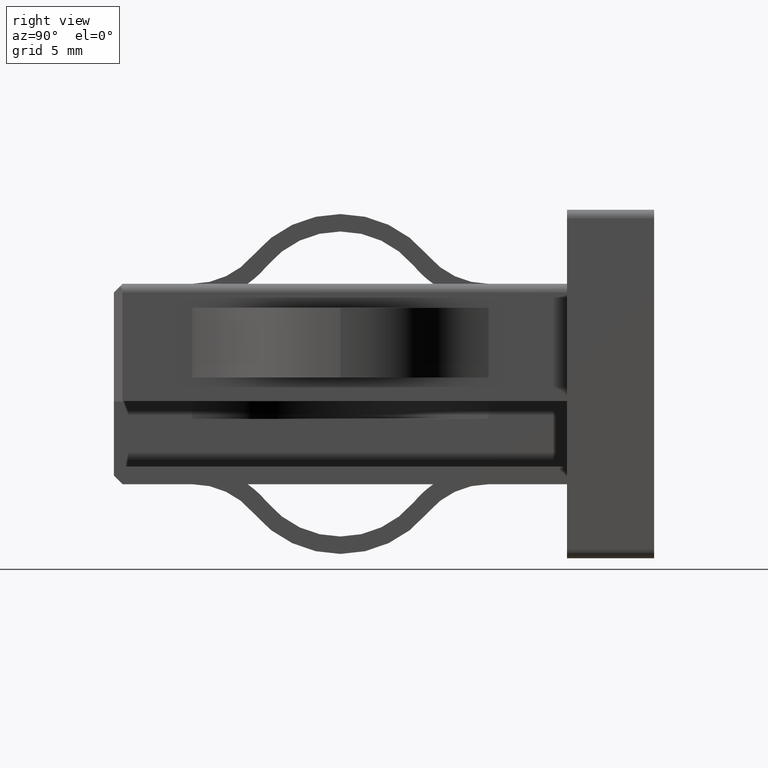
[diagram: clean part render]
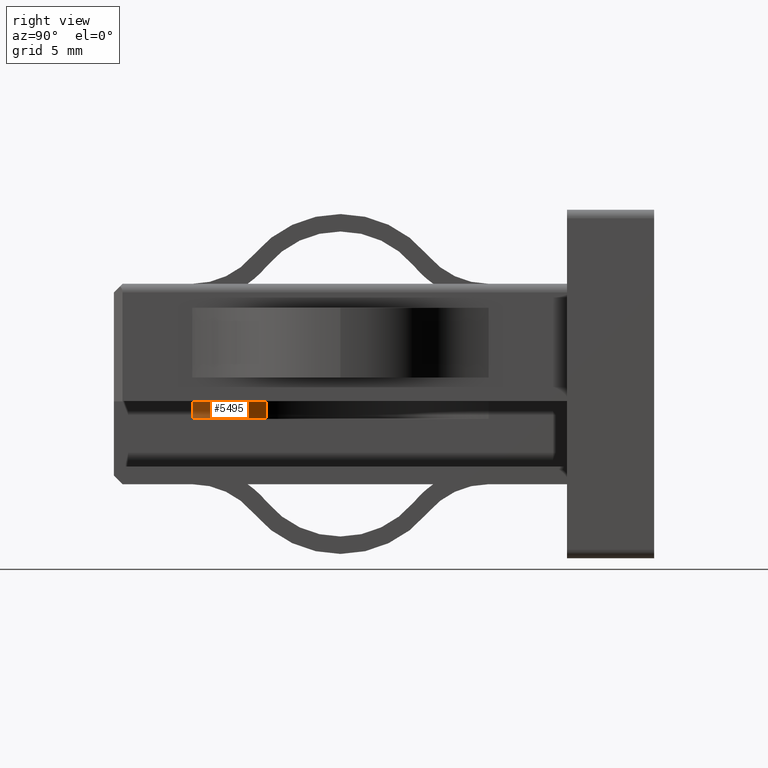
[diagram: same view with one face highlighted and labeled with its STEP entity id]
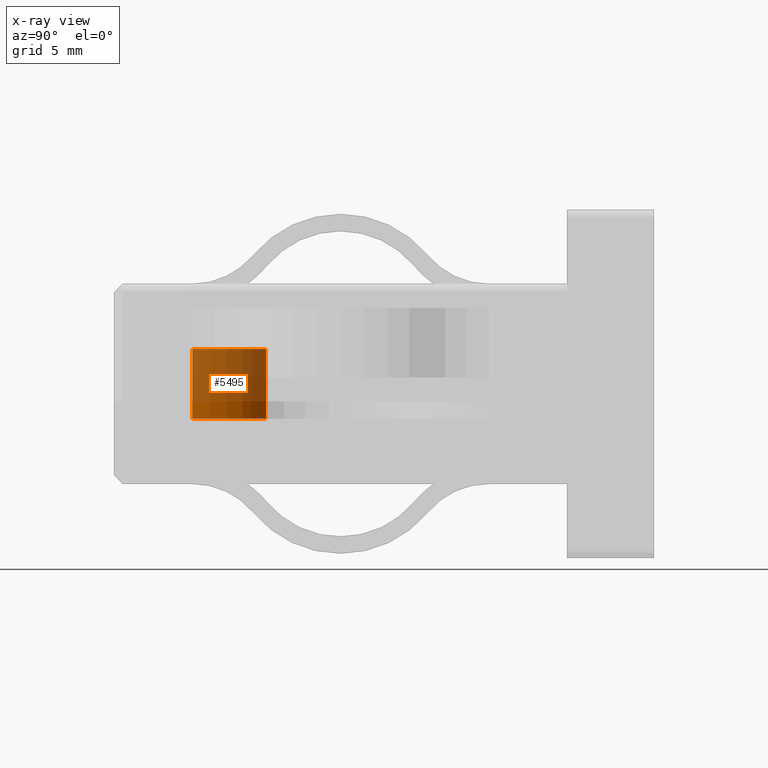
[diagram: x-ray of the same camera — body ghosted, the highlighted face saturated]
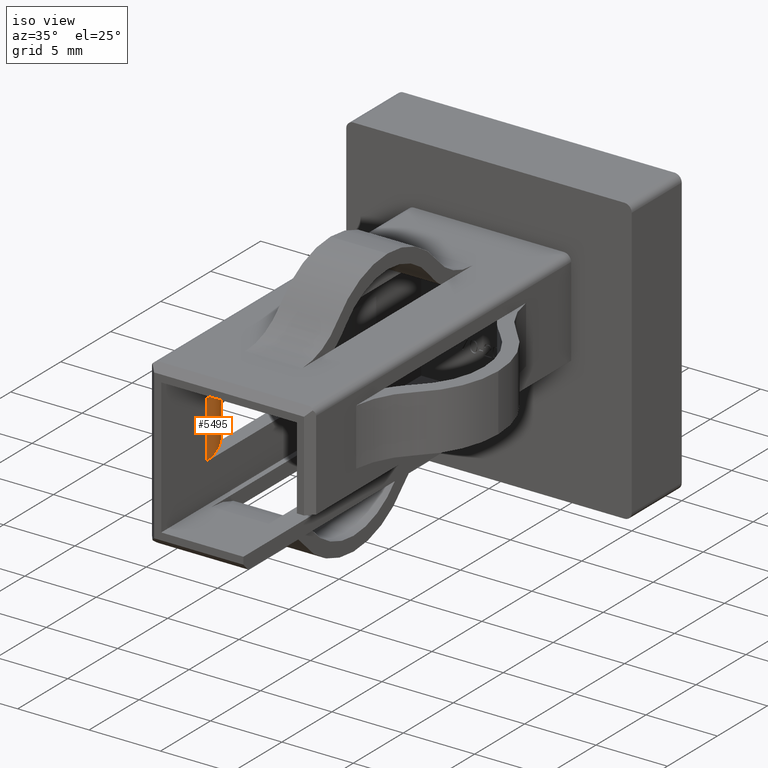
[diagram: same view with one face highlighted and labeled with its STEP entity id]
A machine part, right view. The second image highlights one B-rep face of the part: STEP entity #5495.
The next image is the same camera in x-ray: the body ghosted, the highlighted face saturated — about 75% of this face is hidden behind the body in this view.
A second angle (iso view) of the same face is appended — the face is thin or edge-on in the first view.
In plain terms, the highlighted cylindrical surface (partial cylindrical patch) has radius 6.5706 mm, axis along (-0, -0, -1).
Its self-contained STEP definition (entity closure, byte-faithful):
#149 = CIRCLE ( 'NONE', #6716, 6.570636481488693700 ) ;
#168 = AXIS2_PLACEMENT_3D ( 'NONE', #6894, #12306, #5817 ) ;
#398 = CIRCLE ( 'NONE', #11733, 6.570636481488693700 ) ;
#414 = EDGE_CURVE ( 'NONE', #11093, #3120, #13207, .T. ) ;
#984 = CARTESIAN_POINT ( 'NONE',  ( -4.750000000000004400, -21.49999999999999300, 2.000000000000000400 ) ) ;
#1139 = VERTEX_POINT ( 'NONE', #9798 ) ;
#1395 = CARTESIAN_POINT ( 'NONE',  ( -11.29085412328629400, -22.12489287862712200, 2.000000000000000900 ) ) ;
#1452 = CARTESIAN_POINT ( 'NONE',  ( -11.29085412328629400, -22.12489287862712200, -1.999999999999999100 ) ) ;
#1827 = VERTEX_POINT ( 'NONE', #9586 ) ;
#2024 = CARTESIAN_POINT ( 'NONE',  ( -4.750000000000004400, -21.49999999999999300, 2.000000000000000400 ) ) ;
#2464 = EDGE_LOOP ( 'NONE', ( #11281, #12801, #7157, #2619, #8519, #2702 ) ) ;
#2509 = CYLINDRICAL_SURFACE ( 'NONE', #8688, 6.570636481488693700 ) ;
#2619 = ORIENTED_EDGE ( 'NONE', *, *, #9859, .T. ) ;
#2678 = VECTOR ( 'NONE', #6420, 1000.000000000000000 ) ;
#2702 = ORIENTED_EDGE ( 'NONE', *, *, #4727, .T. ) ;
#2945 = AXIS2_PLACEMENT_3D ( 'NONE', #1395, #4486, #13350 ) ;
#3120 = VERTEX_POINT ( 'NONE', #9674 ) ;
#3266 = CIRCLE ( 'NONE', #2945, 6.570636481488693700 ) ;
#3357 = LINE ( 'NONE', #4599, #7389 ) ;
#3623 = DIRECTION ( 'NONE',  ( 6.424901762877059800E-017, -0.0000000000000000000, 1.000000000000000000 ) ) ;
#4486 = DIRECTION ( 'NONE',  ( -6.424901762877062300E-017, 6.162975822039154700E-033, -1.000000000000000000 ) ) ;
#4599 = CARTESIAN_POINT ( 'NONE',  ( -6.869671997424534400, -17.26419206682738100, -1.999999999999999600 ) ) ;
#4727 = EDGE_CURVE ( 'NONE', #6084, #1827, #5360, .T. ) ;
#4998 = CARTESIAN_POINT ( 'NONE',  ( -6.869671997424534400, -17.26419206682738100, -1.999999999999999600 ) ) ;
#5142 = DIRECTION ( 'NONE',  ( -6.424901762877059800E-017, -0.0000000000000000000, -1.000000000000000000 ) ) ;
#5360 = LINE ( 'NONE', #984, #2678 ) ;
#5495 = ADVANCED_FACE ( 'NONE', ( #8550 ), #2509, .T. ) ;
#5817 = DIRECTION ( 'NONE',  ( -1.000000000000000000, 0.0000000000000000000, 6.600287053103623900E-017 ) ) ;
#6018 = DIRECTION ( 'NONE',  ( -1.000000000000000000, 0.0000000000000000000, 6.600287053103623900E-017 ) ) ;
#6084 = VERTEX_POINT ( 'NONE', #2024 ) ;
#6278 = DIRECTION ( 'NONE',  ( -1.000000000000000000, 0.0000000000000000000, 6.600287053103623900E-017 ) ) ;
#6420 = DIRECTION ( 'NONE',  ( -6.424901762877059800E-017, -0.0000000000000000000, -1.000000000000000000 ) ) ;
#6716 = AXIS2_PLACEMENT_3D ( 'NONE', #8074, #9232, #6018 ) ;
#6894 = CARTESIAN_POINT ( 'NONE',  ( -11.29085412328629400, -22.12489287862712200, -1.999999999999999100 ) ) ;
#6897 = DIRECTION ( 'NONE',  ( -1.000000000000000000, 0.0000000000000000000, 6.600287053103623900E-017 ) ) ;
#7157 = ORIENTED_EDGE ( 'NONE', *, *, #13836, .T. ) ;
#7389 = VECTOR ( 'NONE', #3623, 1000.000000000000000 ) ;
#8074 = CARTESIAN_POINT ( 'NONE',  ( -11.29085412328629400, -22.12489287862712200, 2.000000000000000900 ) ) ;
#8519 = ORIENTED_EDGE ( 'NONE', *, *, #10871, .T. ) ;
#8550 = FACE_OUTER_BOUND ( 'NONE', #2464, .T. ) ;
#8688 = AXIS2_PLACEMENT_3D ( 'NONE', #9485, #5142, #6278 ) ;
#8936 = DIRECTION ( 'NONE',  ( -6.424901762877062300E-017, 6.162975822039154700E-033, -1.000000000000000000 ) ) ;
#9232 = DIRECTION ( 'NONE',  ( -6.424901762877062300E-017, 6.162975822039154700E-033, -1.000000000000000000 ) ) ;
#9485 = CARTESIAN_POINT ( 'NONE',  ( -11.29085412328629400, -22.12489287862712200, 2.000000000000000900 ) ) ;
#9586 = CARTESIAN_POINT ( 'NONE',  ( -4.749999999999999100, -21.49999999999999300, -2.000000000000000000 ) ) ;
#9674 = CARTESIAN_POINT ( 'NONE',  ( -5.749999999999998200, -18.59329276588340800, -1.999999999999999600 ) ) ;
#9798 = CARTESIAN_POINT ( 'NONE',  ( -6.869671997424534400, -17.26419206682738100, 2.000000000000000400 ) ) ;
#9859 = EDGE_CURVE ( 'NONE', #1139, #9894, #149, .T. ) ;
#9894 = VERTEX_POINT ( 'NONE', #12614 ) ;
#10871 = EDGE_CURVE ( 'NONE', #9894, #6084, #3266, .T. ) ;
#11093 = VERTEX_POINT ( 'NONE', #4998 ) ;
#11281 = ORIENTED_EDGE ( 'NONE', *, *, #11980, .F. ) ;
#11733 = AXIS2_PLACEMENT_3D ( 'NONE', #1452, #8936, #6897 ) ;
#11980 = EDGE_CURVE ( 'NONE', #3120, #1827, #398, .T. ) ;
#12306 = DIRECTION ( 'NONE',  ( -6.424901762877062300E-017, 6.162975822039154700E-033, -1.000000000000000000 ) ) ;
#12614 = CARTESIAN_POINT ( 'NONE',  ( -5.749999999999998200, -18.59329276588340800, 2.000000000000000400 ) ) ;
#12801 = ORIENTED_EDGE ( 'NONE', *, *, #414, .F. ) ;
#13207 = CIRCLE ( 'NONE', #168, 6.570636481488693700 ) ;
#13350 = DIRECTION ( 'NONE',  ( -1.000000000000000000, 0.0000000000000000000, 6.600287053103623900E-017 ) ) ;
#13836 = EDGE_CURVE ( 'NONE', #11093, #1139, #3357, .T. ) ;